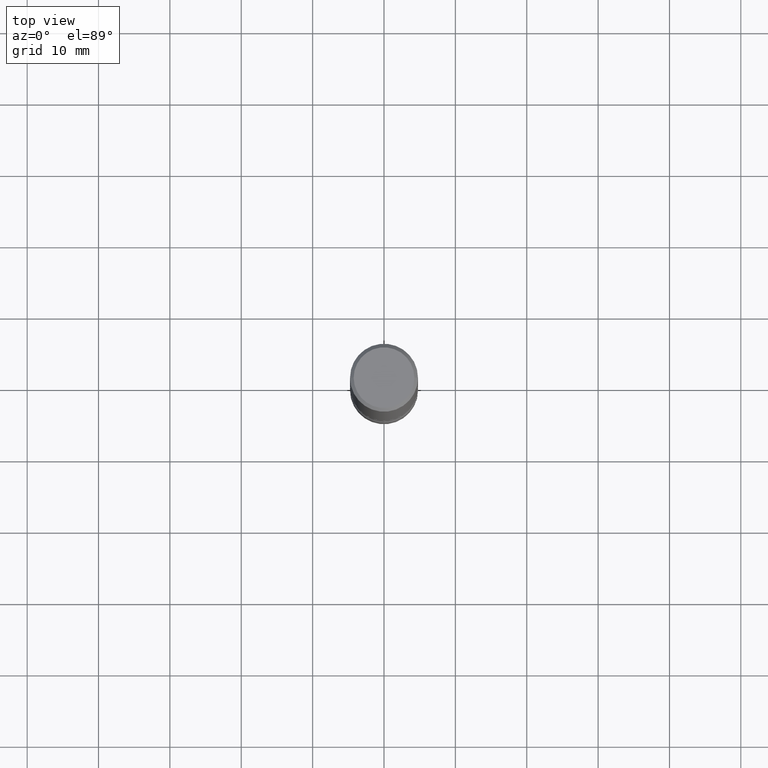
[diagram: clean part render]
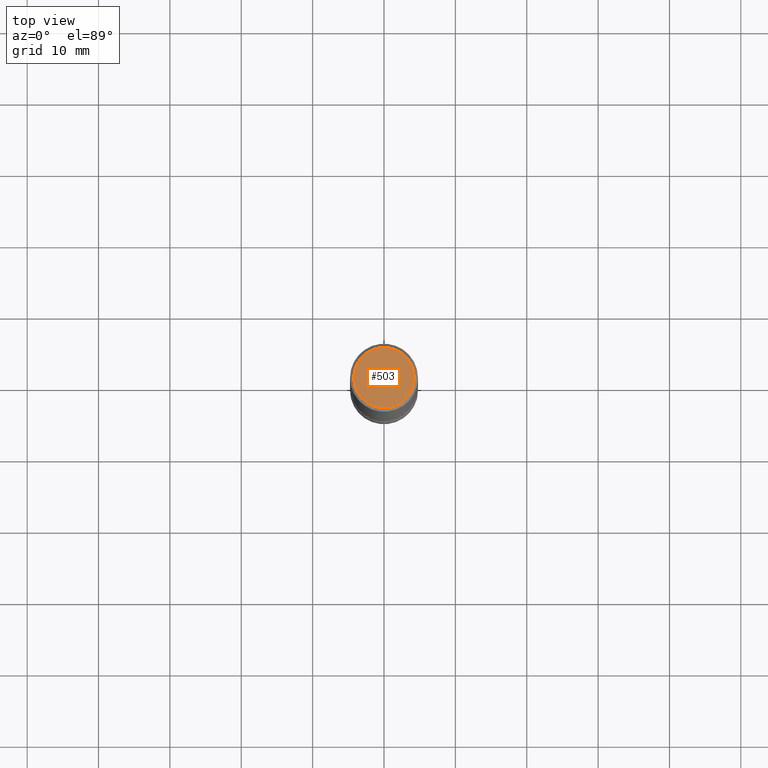
[diagram: same view with one face highlighted and labeled with its STEP entity id]
A machine part, top view. The second image highlights one B-rep face of the part: STEP entity #503.
In plain terms, the highlighted planar face has unit normal (0, -0, -1).
Its self-contained STEP definition (entity closure, byte-faithful):
#16 = DIRECTION ( 'NONE',  ( 2.438088387897960049E-29, -3.491481338843145188E-15, -1.000000000000000000 ) ) ;
#51 = DIRECTION ( 'NONE',  ( 1.000000000000000000, -6.982962677686266711E-15, 4.876176775795935793E-29 ) ) ;
#129 = ORIENTED_EDGE ( 'NONE', *, *, #305, .T. ) ;
#141 = CARTESIAN_POINT ( 'NONE',  ( -0.1674999999999997879, 1.204561061900879272E-15, -8.301862719484101980E-30 ) ) ;
#152 = DIRECTION ( 'NONE',  ( 1.000000000000000000, -6.982962677686266711E-15, 4.876176775795935793E-29 ) ) ;
#154 = DIRECTION ( 'NONE',  ( -2.445468806185136597E-29, 3.491481338843145583E-15, 1.000000000000000000 ) ) ;
#183 = AXIS2_PLACEMENT_3D ( 'NONE', #756, #16, #442 ) ;
#184 = FACE_OUTER_BOUND ( 'NONE', #689, .T. ) ;
#187 = PLANE ( 'NONE',  #183 ) ;
#214 = CARTESIAN_POINT ( 'NONE',  ( 0.000000000000000000, 0.000000000000000000, 0.000000000000000000 ) ) ;
#237 = VERTEX_POINT ( 'NONE', #141 ) ;
#254 = VERTEX_POINT ( 'NONE', #285 ) ;
#285 = CARTESIAN_POINT ( 'NONE',  ( 0.1674999999999997879, -1.252653207992877105E-15, 8.469775550109229576E-30 ) ) ;
#304 = CIRCLE ( 'NONE', #437, 0.1674999999999997879 ) ;
#305 = EDGE_CURVE ( 'NONE', #237, #254, #396, .T. ) ;
#392 = DIRECTION ( 'NONE',  ( -2.445468806185136597E-29, 3.491481338843145583E-15, 1.000000000000000000 ) ) ;
#396 = CIRCLE ( 'NONE', #475, 0.1674999999999997879 ) ;
#437 = AXIS2_PLACEMENT_3D ( 'NONE', #702, #392, #51 ) ;
#442 = DIRECTION ( 'NONE',  ( -1.000000000000000000, 6.982962677686265922E-15, -4.876176775795935793E-29 ) ) ;
#475 = AXIS2_PLACEMENT_3D ( 'NONE', #214, #154, #152 ) ;
#503 = ADVANCED_FACE ( 'NONE', ( #184 ), #187, .F. ) ;
#689 = EDGE_LOOP ( 'NONE', ( #129, #772 ) ) ;
#702 = CARTESIAN_POINT ( 'NONE',  ( 0.000000000000000000, 0.000000000000000000, 0.000000000000000000 ) ) ;
#756 = CARTESIAN_POINT ( 'NONE',  ( 1.169646248512448215E-15, 0.1674999999999997879, -5.848231242562260795E-16 ) ) ;
#772 = ORIENTED_EDGE ( 'NONE', *, *, #793, .T. ) ;
#793 = EDGE_CURVE ( 'NONE', #254, #237, #304, .T. ) ;